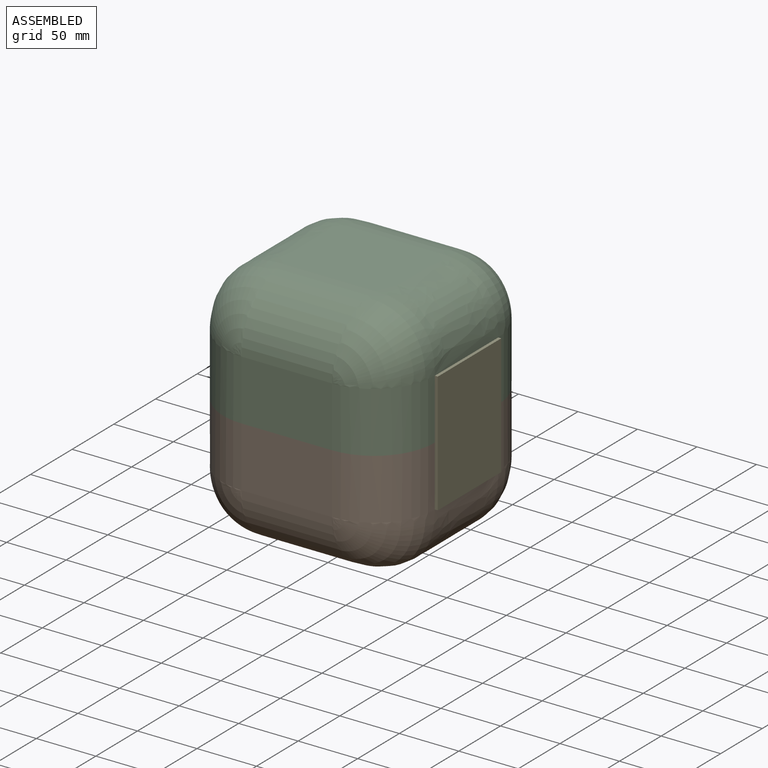
[diagram: assembled view]
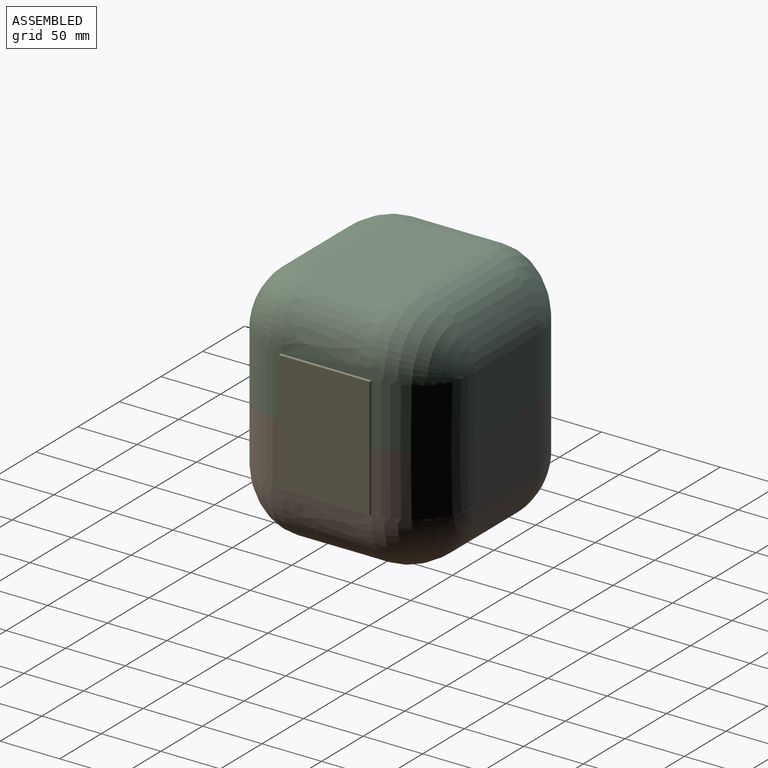
[diagram: assembled view, second angle]
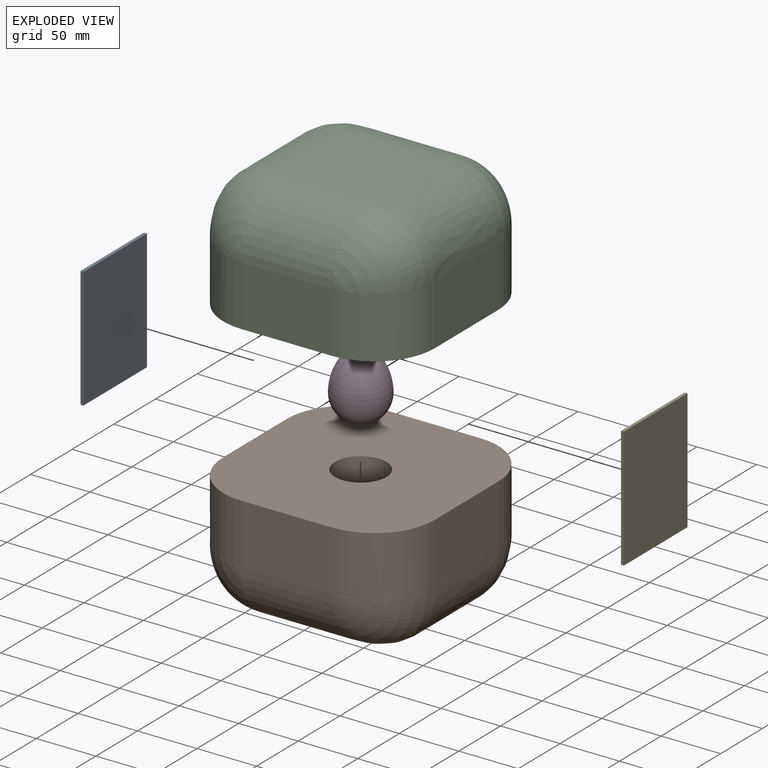
[diagram: exploded view]
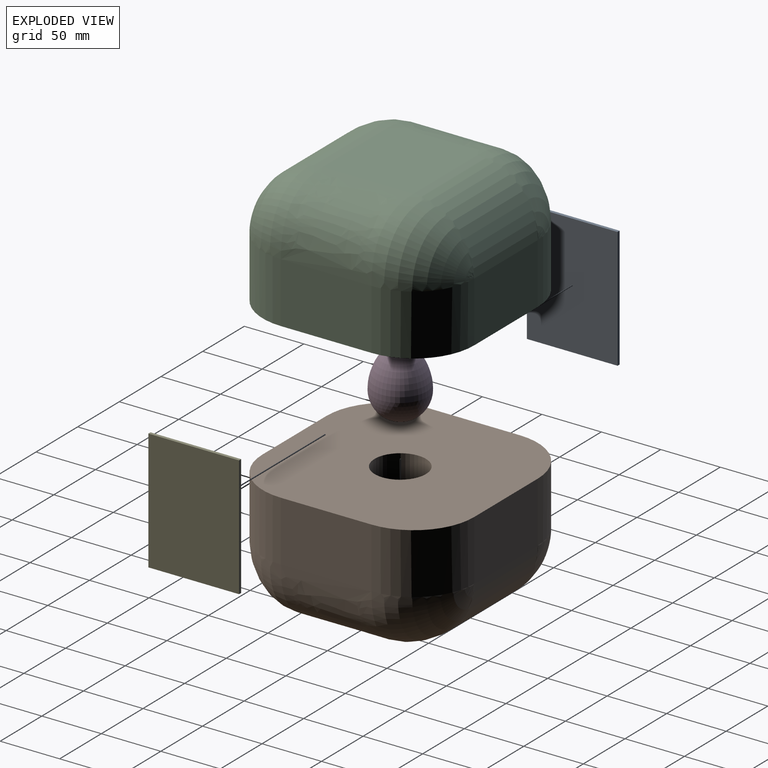
[diagram: exploded view, second angle]
ASSEMBLY  parts=5 mates=4
PART A: 6 faces, bbox 2.5x76.2x101.6 mm
  f0: plane 76.2x2.54mm, normal (0,0,-1), area 193.5mm2, adj f1,f3,f4,f5
  f1: plane 101.6x2.54mm, normal (0,1,0), area 258.1mm2, adj f0,f2,f4,f5
  f2: plane 76.2x2.54mm, normal (0,0,1), area 193.5mm2, adj f1,f3,f4,f5
  f3: plane 101.6x2.54mm, normal (0,-1,0), area 258.1mm2, adj f0,f2,f4,f5
  f4: plane 101.6x76.2mm, normal (1,0,0), area 7741.9mm2, adj f0,f1,f2,f3
  f5: plane 101.6x76.2mm, normal (-1,0,0), area 7741.9mm2, adj f0,f1,f2,f3
PART B: 21 faces, bbox 177.8x195.6x101.6 mm
  f0: plane 76.2x50.8mm, normal (0,-1,0), area 3871mm2, adj f5,f8,f10,f12
  f1: plane 76.2x50.8mm, normal (1,0,0), area 3871mm2, adj f5,f7,f12,f16
  f2: plane 76.2x50.8mm, normal (0,1,0), area 3871mm2, adj f5,f13,f15,f16
  f3: plane 76.2x50.8mm, normal (-1,0,0), area 3871mm2, adj f5,f6,f8,f13
  f4: plane 76.2x76.2mm, normal (0,0,1), area 5806.4mm2, adj f6,f7,f10,f15
  f5: plane 177.8x177.8mm, normal (0,0,-1), area 27929.8mm2, adj f0,f1,f2,f3,f8,f12,f13,f16
  f6: bspline ~195.58x50.8mm, area 6295mm2, adj f3,f4,f9,f14
  f7: bspline ~195.58x50.8mm, area 6295mm2, adj f1,f4,f11,f17
  f8: cylinder r=50.8mm len=50.8mm, axis (0,0,-1), area 4053.7mm2, adj f0,f3,f5,f9
  f9: bspline ~50.8x50.8mm, area 4186.7mm2, adj f6,f8,f10
  f10: cylinder r=50.8mm len=76.2mm, axis (-1,0,0), area 6080.5mm2, adj f0,f4,f9,f11
  f11: bspline ~50.8x50.8mm, area 4186.7mm2, adj f7,f10,f12
  f12: cylinder r=50.8mm len=50.8mm, axis (0,0,1), area 4053.7mm2, adj f0,f1,f5,f11
  f13: cylinder r=50.8mm len=50.8mm, axis (0,0,1), area 4053.7mm2, adj f2,f3,f5,f14
  f14: bspline ~50.8x50.8mm, area 4186.7mm2, adj f6,f13,f15
  f15: cylinder r=50.8mm len=76.2mm, axis (1,0,0), area 6080.5mm2, adj f2,f4,f14,f17
  f16: cylinder r=50.8mm len=50.8mm, axis (0,0,-1), area 4053.7mm2, adj f1,f2,f5,f17
  f17: bspline ~50.8x50.8mm, area 4186.7mm2, adj f7,f15,f16
  f18: cone r=0mm half-angle=59deg, axis (0,0,-1), area 1344.3mm2, adj f20
  f19: cylinder r=21.62mm len=43.23mm, axis (0,0,-1), area 3059.3mm2, adj f5,f20
  f20: torus R=16.54mm, axis (0,0,-1), area 682.5mm2, adj f18,f19
PART C: same geometry as B
PART D: 6 faces, bbox 45.2x45.2x57.9 mm
  f0: torus R=0mm, axis (0,0,-1), area 343.3mm2, adj f1
  f1: revolved ~45.22x45.22mm, area 3972.1mm2, adj f0,f2
  f2: sphere r=22.61mm, area 3212.2mm2, adj f1
  f3: torus R=0mm, axis (0,0,-1), area 294.9mm2, adj f4
  f4: revolved ~43.22x43.22mm, area 3690.3mm2, adj f3,f5
  f5: sphere r=21.61mm, area 2934.3mm2, adj f4
PART E: same geometry as A
PLACE A rot(axis=(0,1,0),180deg) t=(23.67,0,0)mm
PLACE B rot(axis=(1,0,0),180deg) t=(112.57,0,0)mm
PLACE C t=(112.57,0,0)mm
PLACE D t=(112.57,0.37,0)mm
PLACE E rot(axis=(0,1,0),180deg) t=(204.01,0,0)mm
MATE parallel D.f0 <-> C.f18  axis (0,0,1) through (112.57,0,0)mm
MATE parallel A.f5 <-> B.f3  axis (1,0,0) through (23.67,0,0)mm
MATE parallel E.f4 <-> B.f1  axis (-1,0,0) through (201.47,0,0)mm
MATE parallel B.f18 <-> D.f0  axis (0,0,1) through (112.57,0,0)mm
